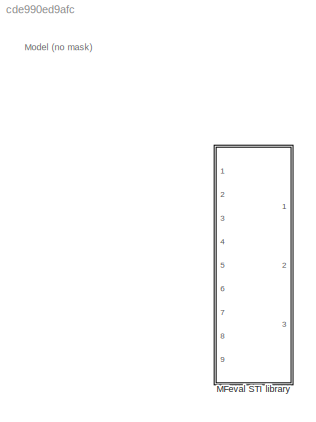
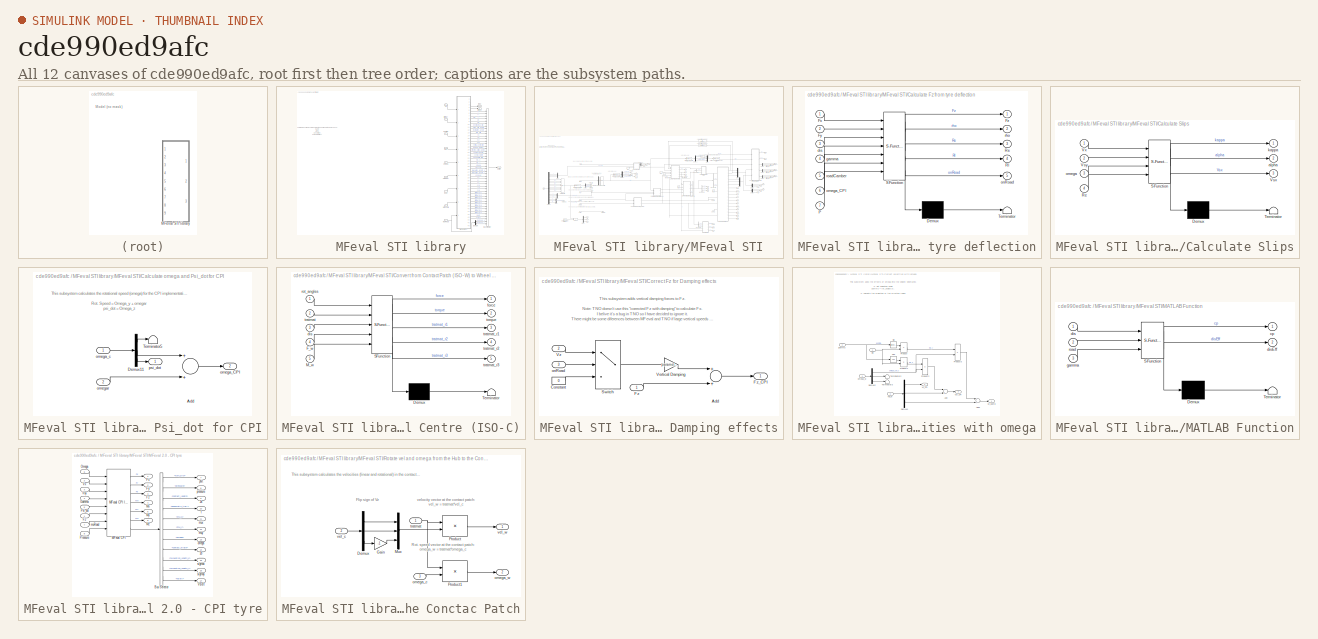
[diagram: thumbnail index - all 12 canvases of the model, root first then tree order]
MODEL slx_cde990ed9afc
KIND library
CONFIG AbsTol = auto
CONFIG EnableMultiTasking = off
CONFIG FixedStep = auto
CONFIG MaxStep = auto
CONFIG MinStep = auto
CONFIG RelTol = 1e-3
CONFIG SampleTimeConstraint = Unconstrained
CONFIG Solver = ode45
CONFIG SolverName = ode45
CONFIG StartTime = 0.0
CONFIG StopTime = 10.0
BLOCK [SubSystem] MFeval STI library
  Ports = [9, 3]
  RequestExecContextInheritance = off
  Variant = off
BLOCK [BusCreator] MFeval STI library/Bus Creator
  DisplayOption = bar
  InheritFromInputs = on
  Inputs = 46
  Ports = [46, 1]
BLOCK [Demux] MFeval STI library/Demux
  DisplayOption = bar
  Outputs = 2
  Ports = [1, 2]
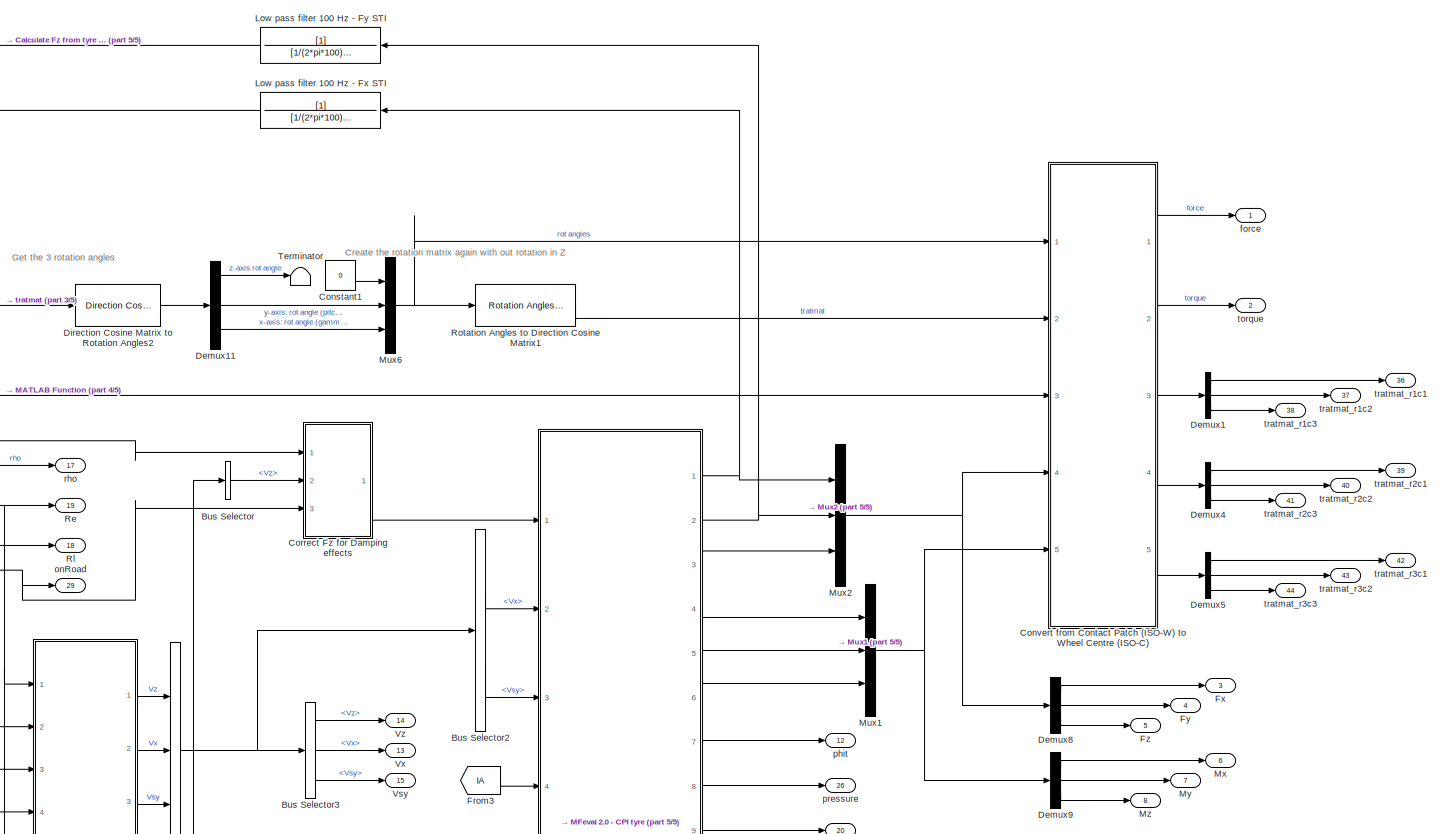
[diagram: MFeval STI library/MFeval STI - part 1/5, top right region]
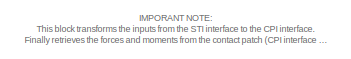
[diagram: MFeval STI library/MFeval STI - part 2/5, top left region]
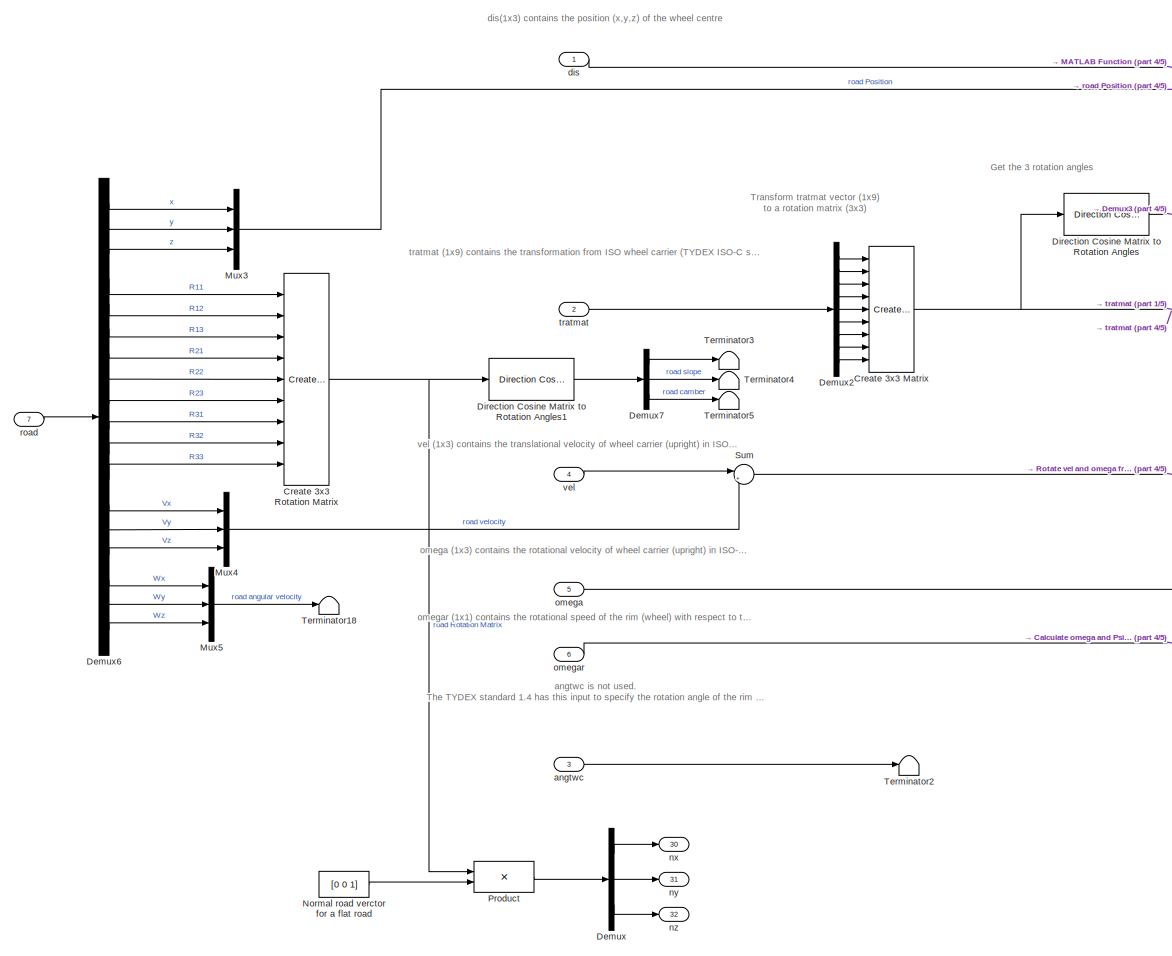
[diagram: MFeval STI library/MFeval STI - part 3/5, middle left region]
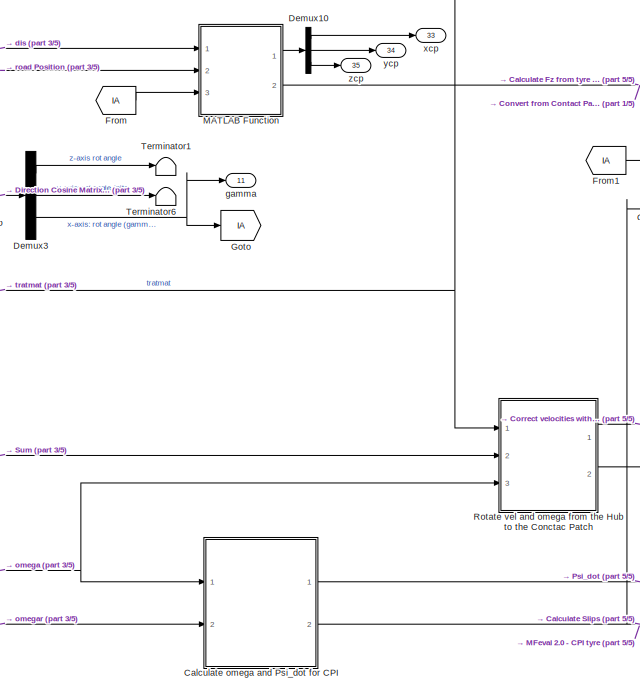
[diagram: MFeval STI library/MFeval STI - part 4/5, central region]
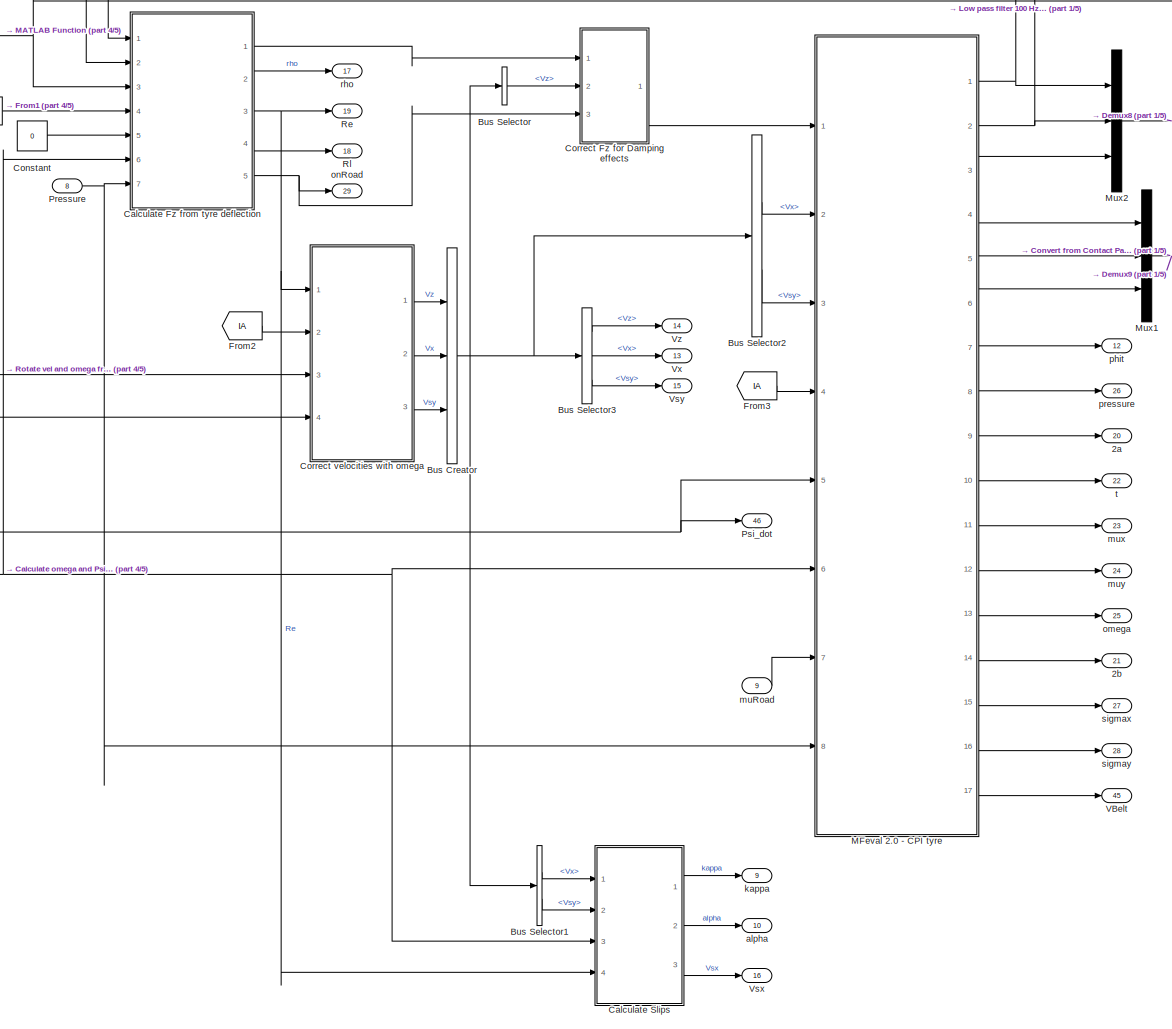
[diagram: MFeval STI library/MFeval STI - part 5/5, middle right region]
BLOCK [SubSystem] MFeval STI library/MFeval STI
  Ports = [9, 46]
  RequestExecContextInheritance = off
  Variant = off
BLOCK [Outport] MFeval STI library/MFeval STI/2a
  IconDisplay = Port number
  Port = 20
BLOCK [Outport] MFeval STI library/MFeval STI/2b
  IconDisplay = Port number
  Port = 21
BLOCK [BusCreator] MFeval STI library/MFeval STI/Bus Creator
  DisplayOption = bar
  InheritFromInputs = on
  Inputs = 3
  Ports = [3, 1]
BLOCK [BusSelector] MFeval STI library/MFeval STI/Bus Selector
  OutputAsBus = off
  OutputSignals = Vz
  Ports = [1, 1]
BLOCK [BusSelector] MFeval STI library/MFeval STI/Bus Selector1
  OutputAsBus = off
  OutputSignals = Vx,Vsy
  Ports = [1, 2]
BLOCK [BusSelector] MFeval STI library/MFeval STI/Bus Selector2
  OutputAsBus = off
  OutputSignals = Vx,Vsy
  Ports = [1, 2]
BLOCK [BusSelector] MFeval STI library/MFeval STI/Bus Selector3
  OutputAsBus = off
  OutputSignals = Vz,Vx,Vsy
  Ports = [1, 3]
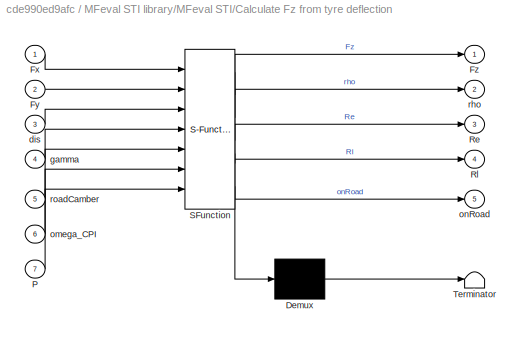
BLOCK [SubSystem] MFeval STI library/MFeval STI/Calculate Fz from tyre deflection
  ErrorFcn = Stateflow.Translate.translate
  PermitHierarchicalResolution = ExplicitOnly
  Ports = [7, 5]
  RequestExecContextInheritance = off
  SFBlockType = MATLAB Function
  TreatAsAtomicUnit = on
  Variant = off
BLOCK [Demux] MFeval STI library/MFeval STI/Calculate Fz from tyre deflection/ Demux 
  Outputs = 1
  Ports = [1, 1]
BLOCK [S-Function] MFeval STI library/MFeval STI/Calculate Fz from tyre deflection/ SFunction 
  EnableBusSupport = off
  FunctionName = sf_sfun
  Parameters = parameterStruct,userDynamics
  PortCounts = [7 6]
  Ports = [7, 6]
  SFcnIsStateOwnerBlock = off
  SFunctionDeploymentMode = off
  Tag = Stateflow S-Function mfeval_STI_LIB 16
BLOCK [Terminator] MFeval STI library/MFeval STI/Calculate Fz from tyre deflection/ Terminator 
BLOCK [Inport] MFeval STI library/MFeval STI/Calculate Fz from tyre deflection/Fx
  IconDisplay = Port number
BLOCK [Inport] MFeval STI library/MFeval STI/Calculate Fz from tyre deflection/Fy
  IconDisplay = Port number
  Port = 2
BLOCK [Outport] MFeval STI library/MFeval STI/Calculate Fz from tyre deflection/Fz
  IconDisplay = Port number
BLOCK [Inport] MFeval STI library/MFeval STI/Calculate Fz from tyre deflection/P
  IconDisplay = Port number
  Port = 7
BLOCK [Outport] MFeval STI library/MFeval STI/Calculate Fz from tyre deflection/Re
  IconDisplay = Port number
  Port = 3
BLOCK [Outport] MFeval STI library/MFeval STI/Calculate Fz from tyre deflection/Rl
  IconDisplay = Port number
  Port = 4
BLOCK [Inport] MFeval STI library/MFeval STI/Calculate Fz from tyre deflection/dis
  IconDisplay = Port number
  Port = 3
BLOCK [Inport] MFeval STI library/MFeval STI/Calculate Fz from tyre deflection/gamma
  IconDisplay = Port number
  Port = 4
BLOCK [Inport] MFeval STI library/MFeval STI/Calculate Fz from tyre deflection/omega_CPI
  IconDisplay = Port number
  Port = 6
BLOCK [Outport] MFeval STI library/MFeval STI/Calculate Fz from tyre deflection/onRoad
  IconDisplay = Port number
  Port = 5
BLOCK [Outport] MFeval STI library/MFeval STI/Calculate Fz from tyre deflection/rho
  IconDisplay = Port number
  Port = 2
BLOCK [Inport] MFeval STI library/MFeval STI/Calculate Fz from tyre deflection/roadCamber
  IconDisplay = Port number
  Port = 5
BLOCK [SubSystem] MFeval STI library/MFeval STI/Calculate Slips
  ErrorFcn = Stateflow.Translate.translate
  PermitHierarchicalResolution = ExplicitOnly
  Ports = [4, 3]
  RequestExecContextInheritance = off
  SFBlockType = MATLAB Function
  TreatAsAtomicUnit = on
  Variant = off
BLOCK [Demux] MFeval STI library/MFeval STI/Calculate Slips/ Demux 
  Outputs = 1
  Ports = [1, 1]
BLOCK [S-Function] MFeval STI library/MFeval STI/Calculate Slips/ SFunction 
  EnableBusSupport = off
  FunctionName = sf_sfun
  Parameters = parameterStruct
  PortCounts = [4 4]
  Ports = [4, 4]
  SFcnIsStateOwnerBlock = off
  SFunctionDeploymentMode = off
  Tag = Stateflow S-Function mfeval_STI_LIB 3
BLOCK [Terminator] MFeval STI library/MFeval STI/Calculate Slips/ Terminator 
BLOCK [Inport] MFeval STI library/MFeval STI/Calculate Slips/Re
  IconDisplay = Port number
  Port = 4
BLOCK [Outport] MFeval STI library/MFeval STI/Calculate Slips/Vsx
  IconDisplay = Port number
  Port = 3
BLOCK [Inport] MFeval STI library/MFeval STI/Calculate Slips/Vsy
  IconDisplay = Port number
  Port = 2
BLOCK [Inport] MFeval STI library/MFeval STI/Calculate Slips/Vx
  IconDisplay = Port number
BLOCK [Outport] MFeval STI library/MFeval STI/Calculate Slips/alpha
  IconDisplay = Port number
  Port = 2
BLOCK [Outport] MFeval STI library/MFeval STI/Calculate Slips/kappa
  IconDisplay = Port number
BLOCK [Inport] MFeval STI library/MFeval STI/Calculate Slips/omega
  IconDisplay = Port number
  Port = 3
BLOCK [SubSystem] MFeval STI library/MFeval STI/Calculate omega and Psi_dot for CPI
  Ports = [2, 2]
  RequestExecContextInheritance = off
  Variant = off
BLOCK [Sum] MFeval STI library/MFeval STI/Calculate omega and Psi_dot for CPI/Add
  InputSameDT = off
  OutDataTypeStr = Inherit: Inherit via internal rule
  Ports = [2, 1]
  SaturateOnIntegerOverflow = off
BLOCK [Demux] MFeval STI library/MFeval STI/Calculate omega and Psi_dot for CPI/Demux11
  Outputs = 3
  Ports = [1, 3]
BLOCK [Terminator] MFeval STI library/MFeval STI/Calculate omega and Psi_dot for CPI/Terminator5
BLOCK [Outport] MFeval STI library/MFeval STI/Calculate omega and Psi_dot for CPI/omega_CPI
  IconDisplay = Port number
  Port = 2
BLOCK [Inport] MFeval STI library/MFeval STI/Calculate omega and Psi_dot for CPI/omega_c
  IconDisplay = Port number
BLOCK [Inport] MFeval STI library/MFeval STI/Calculate omega and Psi_dot for CPI/omegar
  IconDisplay = Port number
  Port = 2
BLOCK [Outport] MFeval STI library/MFeval STI/Calculate omega and Psi_dot for CPI/psi_dot
  IconDisplay = Port number
BLOCK [Constant] MFeval STI library/MFeval STI/Constant
  Value = 0
BLOCK [Constant] MFeval STI library/MFeval STI/Constant1
  Value = 0
BLOCK [SubSystem] MFeval STI library/MFeval STI/Convert from Contact Patch (ISO-W) to Wheel Centre (ISO-C)
  ErrorFcn = Stateflow.Translate.translate
  PermitHierarchicalResolution = ExplicitOnly
  Ports = [5, 5]
  RequestExecContextInheritance = off
  SFBlockType = MATLAB Function
  TreatAsAtomicUnit = on
  Variant = off
BLOCK [Demux] MFeval STI library/MFeval STI/Convert from Contact Patch (ISO-W) to Wheel Centre (ISO-C)/ Demux 
  Outputs = 1
  Ports = [1, 1]
BLOCK [S-Function] MFeval STI library/MFeval STI/Convert from Contact Patch (ISO-W) to Wheel Centre (ISO-C)/ SFunction 
  EnableBusSupport = off
  FunctionName = sf_sfun
  PortCounts = [5 6]
  Ports = [5, 6]
  SFcnIsStateOwnerBlock = off
  SFunctionDeploymentMode = off
  Tag = Stateflow S-Function mfeval_STI_LIB 17
BLOCK [Terminator] MFeval STI library/MFeval STI/Convert from Contact Patch (ISO-W) to Wheel Centre (ISO-C)/ Terminator 
BLOCK [Inport] MFeval STI library/MFeval STI/Convert from Contact Patch (ISO-W) to Wheel Centre (ISO-C)/F_w
  IconDisplay = Port number
  Port = 4
BLOCK [Inport] MFeval STI library/MFeval STI/Convert from Contact Patch (ISO-W) to Wheel Centre (ISO-C)/M_w
  IconDisplay = Port number
  Port = 5
BLOCK [Inport] MFeval STI library/MFeval STI/Convert from Contact Patch (ISO-W) to Wheel Centre (ISO-C)/dis
  IconDisplay = Port number
  Port = 3
BLOCK [Outport] MFeval STI library/MFeval STI/Convert from Contact Patch (ISO-W) to Wheel Centre (ISO-C)/force
  IconDisplay = Port number
BLOCK [Inport] MFeval STI library/MFeval STI/Convert from Contact Patch (ISO-W) to Wheel Centre (ISO-C)/rot_angles
  IconDisplay = Port number
BLOCK [Outport] MFeval STI library/MFeval STI/Convert from Contact Patch (ISO-W) to Wheel Centre (ISO-C)/torque
  IconDisplay = Port number
  Port = 2
BLOCK [Inport] MFeval STI library/MFeval STI/Convert from Contact Patch (ISO-W) to Wheel Centre (ISO-C)/tratmat
  IconDisplay = Port number
  Port = 2
BLOCK [Outport] MFeval STI library/MFeval STI/Convert from Contact Patch (ISO-W) to Wheel Centre (ISO-C)/tratmat_r1
  IconDisplay = Port number
  Port = 3
BLOCK [Outport] MFeval STI library/MFeval STI/Convert from Contact Patch (ISO-W) to Wheel Centre (ISO-C)/tratmat_r2
  IconDisplay = Port number
  Port = 4
BLOCK [Outport] MFeval STI library/MFeval STI/Convert from Contact Patch (ISO-W) to Wheel Centre (ISO-C)/tratmat_r3
  IconDisplay = Port number
  Port = 5
BLOCK [SubSystem] MFeval STI library/MFeval STI/Correct Fz for Damping effects
  Ports = [3, 1]
  RequestExecContextInheritance = off
  Variant = off
BLOCK [Sum] MFeval STI library/MFeval STI/Correct Fz for Damping effects/Add
  InputSameDT = off
  OutDataTypeStr = Inherit: Inherit via internal rule
  Ports = [2, 1]
  SaturateOnIntegerOverflow = off
BLOCK [Constant] MFeval STI library/MFeval STI/Correct Fz for Damping effects/Constant
  Value = 0
BLOCK [Inport] MFeval STI library/MFeval STI/Correct Fz for Damping effects/Fz
  IconDisplay = Port number
BLOCK [Outport] MFeval STI library/MFeval STI/Correct Fz for Damping effects/Fz_CPI
  IconDisplay = Port number
BLOCK [Switch] MFeval STI library/MFeval STI/Correct Fz for Damping effects/Switch
  Criteria = u2 > Threshold
  InputSameDT = off
  SaturateOnIntegerOverflow = off
BLOCK [Gain] MFeval STI library/MFeval STI/Correct Fz for Damping effects/Vertical Damping
  Gain = parameterStruct.VERTICAL_DAMPING
  OutDataTypeStr = Inherit: Inherit via internal rule
  ParamDataTypeStr = Inherit: Inherit via internal rule
  SaturateOnIntegerOverflow = off
BLOCK [Inport] MFeval STI library/MFeval STI/Correct Fz for Damping effects/Vz
  IconDisplay = Port number
  Port = 2
BLOCK [Inport] MFeval STI library/MFeval STI/Correct Fz for Damping effects/onRoad
  IconDisplay = Port number
  Port = 3
BLOCK [SubSystem] MFeval STI library/MFeval STI/Correct velocities with omega
  Ports = [4, 3]
  RequestExecContextInheritance = off
  Variant = off
BLOCK [Sum] MFeval STI library/MFeval STI/Correct velocities with omega/Add
  InputSameDT = off
  OutDataTypeStr = Inherit: Inherit via internal rule
  Ports = [2, 1]
  SaturateOnIntegerOverflow = off
BLOCK [Sum] MFeval STI library/MFeval STI/Correct velocities with omega/Add1
  InputSameDT = off
  OutDataTypeStr = Inherit: Inherit via internal rule
  Ports = [2, 1]
  SaturateOnIntegerOverflow = off
BLOCK [Trigonometry] MFeval STI library/MFeval STI/Correct velocities with omega/Cos
  Operator = cos
  Ports = [1, 1]
BLOCK [Demux] MFeval STI library/MFeval STI/Correct velocities with omega/Demux1
  Outputs = 3
  Ports = [1, 3]
BLOCK [Demux] MFeval STI library/MFeval STI/Correct velocities with omega/Demux2
  Outputs = 3
  Ports = [1, 3]
BLOCK [Product] MFeval STI library/MFeval STI/Correct velocities with omega/Product
  InputSameDT = off
  OutDataTypeStr = Inherit: Inherit via internal rule
  Ports = [2, 1]
  RndMeth = Floor
  SaturateOnIntegerOverflow = off
BLOCK [Product] MFeval STI library/MFeval STI/Correct velocities with omega/Product1
  InputSameDT = off
  OutDataTypeStr = Inherit: Inherit via internal rule
  Ports = [2, 1]
  RndMeth = Floor
  SaturateOnIntegerOverflow = off
BLOCK [Product] MFeval STI library/MFeval STI/Correct velocities with omega/Product2
  InputSameDT = off
  OutDataTypeStr = Inherit: Inherit via internal rule
  Ports = [2, 1]
  RndMeth = Floor
  SaturateOnIntegerOverflow = off
BLOCK [Product] MFeval STI library/MFeval STI/Correct velocities with omega/Product3
  InputSameDT = off
  OutDataTypeStr = Inherit: Inherit via internal rule
  Ports = [2, 1]
  RndMeth = Floor
  SaturateOnIntegerOverflow = off
BLOCK [Inport] MFeval STI library/MFeval STI/Correct velocities with omega/Re
  IconDisplay = Port number
BLOCK [Trigonometry] MFeval STI library/MFeval STI/Correct velocities with omega/Sin
  Ports = [1, 1]
BLOCK [Terminator] MFeval STI library/MFeval STI/Correct velocities with omega/Terminator2
BLOCK [Terminator] MFeval STI library/MFeval STI/Correct velocities with omega/Terminator3
BLOCK [Outport] MFeval STI library/MFeval STI/Correct velocities with omega/Vsy_CPI
  IconDisplay = Port number
  Port = 3
BLOCK [Outport] MFeval STI library/MFeval STI/Correct velocities with omega/Vx_CPI
  IconDisplay = Port number
  Port = 2
BLOCK [Outport] MFeval STI library/MFeval STI/Correct velocities with omega/Vz_damp
  IconDisplay = Port number
BLOCK [Inport] MFeval STI library/MFeval STI/Correct velocities with omega/gamma
  IconDisplay = Port number
  Port = 2
BLOCK [Inport] MFeval STI library/MFeval STI/Correct velocities with omega/omega_w
  IconDisplay = Port number
  Port = 4
BLOCK [Inport] MFeval STI library/MFeval STI/Correct velocities with omega/vel_w
  IconDisplay = Port number
  Port = 3
BLOCK [Reference] MFeval STI library/MFeval STI/Create 3x3 Matrix  REF=sharedutil/Create 3x3 Matrix
  Ports = [9, 1]
  SourceBlock = sharedutil/Create 3x3 Matrix
  SourceProductBaseCode = AE
  SourceProductName = Aerospace Blockset
  SourceType = Create 3x3 Matrix
BLOCK [Reference] MFeval STI library/MFeval STI/Create 3x3 Rotation Matrix  REF=sharedutil/Create 3x3 Matrix
  Ports = [9, 1]
  SourceBlock = sharedutil/Create 3x3 Matrix
  SourceProductBaseCode = AE
  SourceProductName = Aerospace Blockset
  SourceType = Create 3x3 Matrix
BLOCK [Demux] MFeval STI library/MFeval STI/Demux
  Outputs = 3
  Ports = [1, 3]
BLOCK [Demux] MFeval STI library/MFeval STI/Demux1
  Outputs = 3
  Ports = [1, 3]
BLOCK [Demux] MFeval STI library/MFeval STI/Demux10
  Outputs = 3
  Ports = [1, 3]
BLOCK [Demux] MFeval STI library/MFeval STI/Demux11
  DisplayOption = bar
  Outputs = 3
  Ports = [1, 3]
BLOCK [Demux] MFeval STI library/MFeval STI/Demux2
  DisplayOption = bar
  Outputs = 9
  Ports = [1, 9]
BLOCK [Demux] MFeval STI library/MFeval STI/Demux3
  DisplayOption = bar
  Outputs = 3
  Ports = [1, 3]
BLOCK [Demux] MFeval STI library/MFeval STI/Demux4
  Outputs = 3
  Ports = [1, 3]
BLOCK [Demux] MFeval STI library/MFeval STI/Demux5
  Outputs = 3
  Ports = [1, 3]
BLOCK [Demux] MFeval STI library/MFeval STI/Demux6
  DisplayOption = bar
  Outputs = 18
  Ports = [1, 18]
BLOCK [Demux] MFeval STI library/MFeval STI/Demux7
  DisplayOption = bar
  Outputs = 3
  Ports = [1, 3]
BLOCK [Demux] MFeval STI library/MFeval STI/Demux8
  Outputs = 3
  Ports = [1, 3]
BLOCK [Demux] MFeval STI library/MFeval STI/Demux9
  Outputs = 3
  Ports = [1, 3]
BLOCK [Reference] MFeval STI library/MFeval STI/Direction Cosine Matrix to Rotation Angles  REF=sharedtransform/Direction Cosine Matrix
to Rotation Angles
  AttributesFormatString = Rotation Order: %<rotationOrder>
  Ports = [1, 1]
  SourceBlock = sharedtransform/Direction Cosine Matrix\nto Rotation Angles
  SourceProductBaseCode = AE
  SourceProductName = Aerospace Blockset
  SourceType = DCM2Ang
BLOCK [Reference] MFeval STI library/MFeval STI/Direction Cosine Matrix to Rotation Angles1  REF=sharedtransform/Direction Cosine Matrix
to Rotation Angles
  AttributesFormatString = Rotation Order: %<rotationOrder>
  Ports = [1, 1]
  SourceBlock = sharedtransform/Direction Cosine Matrix\nto Rotation Angles
  SourceProductBaseCode = AE
  SourceProductName = Aerospace Blockset
  SourceType = DCM2Ang
BLOCK [Reference] MFeval STI library/MFeval STI/Direction Cosine Matrix to Rotation Angles2  REF=sharedtransform/Direction Cosine Matrix
to Rotation Angles
  AttributesFormatString = Rotation Order: %<rotationOrder>
  Ports = [1, 1]
  SourceBlock = sharedtransform/Direction Cosine Matrix\nto Rotation Angles
  SourceProductBaseCode = AE
  SourceProductName = Aerospace Blockset
  SourceType = DCM2Ang
BLOCK [From] MFeval STI library/MFeval STI/From
  GotoTag = IA
BLOCK [From] MFeval STI library/MFeval STI/From1
  GotoTag = IA
BLOCK [From] MFeval STI library/MFeval STI/From2
  GotoTag = IA
BLOCK [From] MFeval STI library/MFeval STI/From3
  GotoTag = IA
BLOCK [Outport] MFeval STI library/MFeval STI/Fx
  IconDisplay = Port number
  Port = 3
BLOCK [Outport] MFeval STI library/MFeval STI/Fy
  IconDisplay = Port number
  Port = 4
BLOCK [Outport] MFeval STI library/MFeval STI/Fz
  IconDisplay = Port number
  Port = 5
BLOCK [Goto] MFeval STI library/MFeval STI/Goto
  GotoTag = IA
BLOCK [TransferFcn] MFeval STI library/MFeval STI/Low pass filter  100 Hz - Fx STI
  Denominator = [1/(2*pi*100) 1]
BLOCK [TransferFcn] MFeval STI library/MFeval STI/Low pass filter  100 Hz - Fy STI
  Denominator = [1/(2*pi*100) 1]
BLOCK [SubSystem] MFeval STI library/MFeval STI/MATLAB Function
  ErrorFcn = Stateflow.Translate.translate
  PermitHierarchicalResolution = ExplicitOnly
  Ports = [3, 2]
  RequestExecContextInheritance = off
  SFBlockType = MATLAB Function
  TreatAsAtomicUnit = on
  Variant = off
BLOCK [Demux] MFeval STI library/MFeval STI/MATLAB Function/ Demux 
  Outputs = 1
  Ports = [1, 1]
BLOCK [S-Function] MFeval STI library/MFeval STI/MATLAB Function/ SFunction 
  EnableBusSupport = off
  FunctionName = sf_sfun
  PortCounts = [3 3]
  Ports = [3, 3]
  SFcnIsStateOwnerBlock = off
  SFunctionDeploymentMode = off
  Tag = Stateflow S-Function mfeval_STI_LIB 2
BLOCK [Terminator] MFeval STI library/MFeval STI/MATLAB Function/ Terminator 
BLOCK [Outport] MFeval STI library/MFeval STI/MATLAB Function/cp
  IconDisplay = Port number
BLOCK [Inport] MFeval STI library/MFeval STI/MATLAB Function/dis
  IconDisplay = Port number
BLOCK [Outport] MFeval STI library/MFeval STI/MATLAB Function/disEff
  IconDisplay = Port number
  Port = 2
BLOCK [Inport] MFeval STI library/MFeval STI/MATLAB Function/gamma
  IconDisplay = Port number
  Port = 3
BLOCK [Inport] MFeval STI library/MFeval STI/MATLAB Function/road
  IconDisplay = Port number
  Port = 2
BLOCK [SubSystem] MFeval STI library/MFeval STI/MFeval 2.0 - CPI tyre
  Ports = [8, 17]
  RequestExecContextInheritance = off
  Variant = off
BLOCK [Outport] MFeval STI library/MFeval STI/MFeval 2.0 - CPI tyre/2a
  IconDisplay = Port number
  Port = 9
BLOCK [Outport] MFeval STI library/MFeval STI/MFeval 2.0 - CPI tyre/2b
  IconDisplay = Port number
  Port = 14
BLOCK [BusSelector] MFeval STI library/MFeval STI/MFeval 2.0 - CPI tyre/Bus Selector
  OutputAsBus = off
  OutputSignals = turn_slip,pressure,contact_length,pneumatic_trail,mu_x,mu_y,omega,contact_width,relaxation_length_x,relaxation_length_y,vBelt
  Ports = [1, 11]
BLOCK [Outport] MFeval STI library/MFeval STI/MFeval 2.0 - CPI tyre/Fx
  IconDisplay = Port number
BLOCK [Outport] MFeval STI library/MFeval STI/MFeval 2.0 - CPI tyre/Fy
  IconDisplay = Port number
  Port = 2
BLOCK [Inport] MFeval STI library/MFeval STI/MFeval 2.0 - CPI tyre/Fz
  IconDisplay = Port number
BLOCK [Outport] MFeval STI library/MFeval STI/MFeval 2.0 - CPI tyre/Fz 
  IconDisplay = Port number
  Port = 3
BLOCK [Inport] MFeval STI library/MFeval STI/MFeval 2.0 - CPI tyre/Gamma
  IconDisplay = Port number
  Port = 4
BLOCK [Reference] MFeval STI library/MFeval STI/MFeval 2.0 - CPI tyre/MFeval CPI  REF=mfeval_CPI_LIB/MFeval CPI library
  Ports = [8, 7]
  SourceBlock = mfeval_CPI_LIB/MFeval CPI library
  SourceType = SubSystem
BLOCK [Outport] MFeval STI library/MFeval STI/MFeval 2.0 - CPI tyre/Mx
  IconDisplay = Port number
  Port = 4
BLOCK [Outport] MFeval STI library/MFeval STI/MFeval 2.0 - CPI tyre/My
  IconDisplay = Port number
  Port = 5
BLOCK [Outport] MFeval STI library/MFeval STI/MFeval 2.0 - CPI tyre/Mz
  IconDisplay = Port number
  Port = 6
BLOCK [Inport] MFeval STI library/MFeval STI/MFeval 2.0 - CPI tyre/Omega
  IconDisplay = Port number
  Port = 6
BLOCK [Inport] MFeval STI library/MFeval STI/MFeval 2.0 - CPI tyre/Pressure
  IconDisplay = Port number
  Port = 8
BLOCK [Inport] MFeval STI library/MFeval STI/MFeval 2.0 - CPI tyre/Psi_dot
  IconDisplay = Port number
  Port = 5
BLOCK [Outport] MFeval STI library/MFeval STI/MFeval 2.0 - CPI tyre/VBelt
  IconDisplay = Port number
  Port = 17
BLOCK [Inport] MFeval STI library/MFeval STI/MFeval 2.0 - CPI tyre/Vsy
  IconDisplay = Port number
  Port = 3
BLOCK [Inport] MFeval STI library/MFeval STI/MFeval 2.0 - CPI tyre/Vx
  IconDisplay = Port number
  Port = 2
BLOCK [Inport] MFeval STI library/MFeval STI/MFeval 2.0 - CPI tyre/muRoad
  IconDisplay = Port number
  Port = 7
BLOCK [Outport] MFeval STI library/MFeval STI/MFeval 2.0 - CPI tyre/mux
  IconDisplay = Port number
  Port = 11
BLOCK [Outport] MFeval STI library/MFeval STI/MFeval 2.0 - CPI tyre/muy
  IconDisplay = Port number
  Port = 12
BLOCK [Outport] MFeval STI library/MFeval STI/MFeval 2.0 - CPI tyre/omega
  IconDisplay = Port number
  Port = 13
BLOCK [Outport] MFeval STI library/MFeval STI/MFeval 2.0 - CPI tyre/phit
  IconDisplay = Port number
  Port = 7
BLOCK [Outport] MFeval STI library/MFeval STI/MFeval 2.0 - CPI tyre/pressure
  IconDisplay = Port number
  Port = 8
BLOCK [Outport] MFeval STI library/MFeval STI/MFeval 2.0 - CPI tyre/sigmax
  IconDisplay = Port number
  Port = 15
BLOCK [Outport] MFeval STI library/MFeval STI/MFeval 2.0 - CPI tyre/sigmay
  IconDisplay = Port number
  Port = 16
BLOCK [Outport] MFeval STI library/MFeval STI/MFeval 2.0 - CPI tyre/t
  IconDisplay = Port number
  Port = 10
BLOCK [Mux] MFeval STI library/MFeval STI/Mux1
  DisplayOption = bar
  Inputs = 3
  Ports = [3, 1]
BLOCK [Mux] MFeval STI library/MFeval STI/Mux2
  DisplayOption = bar
  Inputs = 3
  Ports = [3, 1]
BLOCK [Mux] MFeval STI library/MFeval STI/Mux3
  DisplayOption = bar
  Inputs = 3
  Ports = [3, 1]
BLOCK [Mux] MFeval STI library/MFeval STI/Mux4
  DisplayOption = bar
  Inputs = 3
  Ports = [3, 1]
BLOCK [Mux] MFeval STI library/MFeval STI/Mux5
  DisplayOption = bar
  Inputs = 3
  Ports = [3, 1]
BLOCK [Mux] MFeval STI library/MFeval STI/Mux6
  DisplayOption = bar
  Inputs = 3
  Ports = [3, 1]
BLOCK [Outport] MFeval STI library/MFeval STI/Mx
  IconDisplay = Port number
  Port = 6
BLOCK [Outport] MFeval STI library/MFeval STI/My
  IconDisplay = Port number
  Port = 7
BLOCK [Outport] MFeval STI library/MFeval STI/Mz
  IconDisplay = Port number
  Port = 8
BLOCK [Constant] MFeval STI library/MFeval STI/Normal road verctor for a flat road
  Value = [0 0 1]
BLOCK [Inport] MFeval STI library/MFeval STI/Pressure
  IconDisplay = Port number
  Port = 8
BLOCK [Product] MFeval STI library/MFeval STI/Product
  InputSameDT = off
  Multiplication = Matrix(*)
  OutDataTypeStr = Inherit: Inherit via internal rule
  Ports = [2, 1]
  RndMeth = Floor
  SaturateOnIntegerOverflow = off
BLOCK [Outport] MFeval STI library/MFeval STI/Psi_dot
  IconDisplay = Port number
  Port = 46
BLOCK [Outport] MFeval STI library/MFeval STI/Re
  IconDisplay = Port number
  Port = 19
BLOCK [Outport] MFeval STI library/MFeval STI/Rl
  IconDisplay = Port number
  Port = 18
BLOCK [SubSystem] MFeval STI library/MFeval STI/Rotate vel and omega from the Hub to the Conctac Patch
  Ports = [3, 2]
  RequestExecContextInheritance = off
  Variant = off
BLOCK [Demux] MFeval STI library/MFeval STI/Rotate vel and omega from the Hub to the Conctac Patch/Demux
  Outputs = 3
  Ports = [1, 3]
BLOCK [Gain] MFeval STI library/MFeval STI/Rotate vel and omega from the Hub to the Conctac Patch/Gain
  Gain = -1
  OutDataTypeStr = Inherit: Inherit via internal rule
  ParamDataTypeStr = Inherit: Inherit via internal rule
  SaturateOnIntegerOverflow = off
BLOCK [Mux] MFeval STI library/MFeval STI/Rotate vel and omega from the Hub to the Conctac Patch/Mux
  DisplayOption = bar
  Inputs = 3
  Ports = [3, 1]
BLOCK [Product] MFeval STI library/MFeval STI/Rotate vel and omega from the Hub to the Conctac Patch/Product
  InputSameDT = off
  Multiplication = Matrix(*)
  OutDataTypeStr = Inherit: Inherit via internal rule
  Ports = [2, 1]
  RndMeth = Floor
  SaturateOnIntegerOverflow = off
BLOCK [Product] MFeval STI library/MFeval STI/Rotate vel and omega from the Hub to the Conctac Patch/Product1
  InputSameDT = off
  Multiplication = Matrix(*)
  OutDataTypeStr = Inherit: Inherit via internal rule
  Ports = [2, 1]
  RndMeth = Floor
  SaturateOnIntegerOverflow = off
BLOCK [Inport] MFeval STI library/MFeval STI/Rotate vel and omega from the Hub to the Conctac Patch/omega_c
  IconDisplay = Port number
  Port = 3
BLOCK [Outport] MFeval STI library/MFeval STI/Rotate vel and omega from the Hub to the Conctac Patch/omega_w
  IconDisplay = Port number
  Port = 2
BLOCK [Inport] MFeval STI library/MFeval STI/Rotate vel and omega from the Hub to the Conctac Patch/tratmat
  IconDisplay = Port number
BLOCK [Inport] MFeval STI library/MFeval STI/Rotate vel and omega from the Hub to the Conctac Patch/vel_c
  IconDisplay = Port number
  Port = 2
BLOCK [Outport] MFeval STI library/MFeval STI/Rotate vel and omega from the Hub to the Conctac Patch/vel_w
  IconDisplay = Port number
BLOCK [Reference] MFeval STI library/MFeval STI/Rotation Angles to Direction Cosine Matrix1  REF=sharedtransform/Rotation Angles to
Direction Cosine Matrix
  AttributesFormatString = Rotation Order: %<rotationOrder>
  Ports = [1, 1]
  SourceBlock = sharedtransform/Rotation Angles to\nDirection Cosine Matrix
  SourceProductBaseCode = AE
  SourceProductName = Aerospace Blockset
  SourceType = Ang2DCM
BLOCK [Sum] MFeval STI library/MFeval STI/Sum
  IconShape = round
  InputSameDT = off
  Inputs = |+-
  OutDataTypeStr = Inherit: Inherit via internal rule
  Ports = [2, 1]
  SaturateOnIntegerOverflow = off
BLOCK [Terminator] MFeval STI library/MFeval STI/Terminator
BLOCK [Terminator] MFeval STI library/MFeval STI/Terminator1
BLOCK [Terminator] MFeval STI library/MFeval STI/Terminator18
BLOCK [Terminator] MFeval STI library/MFeval STI/Terminator2
BLOCK [Terminator] MFeval STI library/MFeval STI/Terminator3
BLOCK [Terminator] MFeval STI library/MFeval STI/Terminator4
BLOCK [Terminator] MFeval STI library/MFeval STI/Terminator5
BLOCK [Terminator] MFeval STI library/MFeval STI/Terminator6
BLOCK [Outport] MFeval STI library/MFeval STI/VBelt
  IconDisplay = Port number
  Port = 45
BLOCK [Outport] MFeval STI library/MFeval STI/Vsx
  IconDisplay = Port number
  Port = 16
BLOCK [Outport] MFeval STI library/MFeval STI/Vsy
  IconDisplay = Port number
  Port = 15
BLOCK [Outport] MFeval STI library/MFeval STI/Vx
  IconDisplay = Port number
  Port = 13
BLOCK [Outport] MFeval STI library/MFeval STI/Vz
  IconDisplay = Port number
  Port = 14
BLOCK [Outport] MFeval STI library/MFeval STI/alpha
  IconDisplay = Port number
  Port = 10
BLOCK [Inport] MFeval STI library/MFeval STI/angtwc
  IconDisplay = Port number
  Port = 3
BLOCK [Inport] MFeval STI library/MFeval STI/dis
  IconDisplay = Port number
BLOCK [Outport] MFeval STI library/MFeval STI/force
  IconDisplay = Port number
BLOCK [Outport] MFeval STI library/MFeval STI/gamma
  IconDisplay = Port number
  Port = 11
BLOCK [Outport] MFeval STI library/MFeval STI/kappa
  IconDisplay = Port number
  Port = 9
BLOCK [Inport] MFeval STI library/MFeval STI/muRoad
  IconDisplay = Port number
  Port = 9
BLOCK [Outport] MFeval STI library/MFeval STI/mux
  IconDisplay = Port number
  Port = 23
BLOCK [Outport] MFeval STI library/MFeval STI/muy
  IconDisplay = Port number
  Port = 24
BLOCK [Outport] MFeval STI library/MFeval STI/nx
  IconDisplay = Port number
  Port = 30
BLOCK [Outport] MFeval STI library/MFeval STI/ny
  IconDisplay = Port number
  Port = 31
BLOCK [Outport] MFeval STI library/MFeval STI/nz
  IconDisplay = Port number
  Port = 32
BLOCK [Inport] MFeval STI library/MFeval STI/omega
  IconDisplay = Port number
  Port = 5
BLOCK [Outport] MFeval STI library/MFeval STI/omega 
  IconDisplay = Port number
  Port = 25
BLOCK [Inport] MFeval STI library/MFeval STI/omegar
  IconDisplay = Port number
  Port = 6
BLOCK [Outport] MFeval STI library/MFeval STI/onRoad
  IconDisplay = Port number
  Port = 29
BLOCK [Outport] MFeval STI library/MFeval STI/phit
  IconDisplay = Port number
  Port = 12
BLOCK [Outport] MFeval STI library/MFeval STI/pressure
  IconDisplay = Port number
  Port = 26
BLOCK [Outport] MFeval STI library/MFeval STI/rho
  IconDisplay = Port number
  Port = 17
BLOCK [Inport] MFeval STI library/MFeval STI/road
  IconDisplay = Port number
  Port = 7
BLOCK [Outport] MFeval STI library/MFeval STI/sigmax
  IconDisplay = Port number
  Port = 27
BLOCK [Outport] MFeval STI library/MFeval STI/sigmay
  IconDisplay = Port number
  Port = 28
BLOCK [Outport] MFeval STI library/MFeval STI/t
  IconDisplay = Port number
  Port = 22
BLOCK [Outport] MFeval STI library/MFeval STI/torque
  IconDisplay = Port number
  Port = 2
BLOCK [Inport] MFeval STI library/MFeval STI/tratmat
  IconDisplay = Port number
  Port = 2
BLOCK [Outport] MFeval STI library/MFeval STI/tratmat_r1c1
  IconDisplay = Port number
  Port = 36
BLOCK [Outport] MFeval STI library/MFeval STI/tratmat_r1c2
  IconDisplay = Port number
  Port = 37
BLOCK [Outport] MFeval STI library/MFeval STI/tratmat_r1c3
  IconDisplay = Port number
  Port = 38
BLOCK [Outport] MFeval STI library/MFeval STI/tratmat_r2c1
  IconDisplay = Port number
  Port = 39
BLOCK [Outport] MFeval STI library/MFeval STI/tratmat_r2c2
  IconDisplay = Port number
  Port = 40
BLOCK [Outport] MFeval STI library/MFeval STI/tratmat_r2c3
  IconDisplay = Port number
  Port = 41
BLOCK [Outport] MFeval STI library/MFeval STI/tratmat_r3c1
  IconDisplay = Port number
  Port = 42
BLOCK [Outport] MFeval STI library/MFeval STI/tratmat_r3c2
  IconDisplay = Port number
  Port = 43
BLOCK [Outport] MFeval STI library/MFeval STI/tratmat_r3c3
  IconDisplay = Port number
  Port = 44
BLOCK [Inport] MFeval STI library/MFeval STI/vel
  IconDisplay = Port number
  Port = 4
BLOCK [Outport] MFeval STI library/MFeval STI/xcp
  IconDisplay = Port number
  Port = 33
BLOCK [Outport] MFeval STI library/MFeval STI/ycp
  IconDisplay = Port number
  Port = 34
BLOCK [Outport] MFeval STI library/MFeval STI/zcp
  IconDisplay = Port number
  Port = 35
BLOCK [Inport] MFeval STI library/angtwc
  IconDisplay = Port number
  Port = 3
BLOCK [Inport] MFeval STI library/dis
  IconDisplay = Port number
BLOCK [Outport] MFeval STI library/force
  IconDisplay = Port number
BLOCK [Inport] MFeval STI library/muRoad
  IconDisplay = Port number
  Port = 8
BLOCK [Inport] MFeval STI library/omega
  IconDisplay = Port number
  Port = 5
BLOCK [Inport] MFeval STI library/omegar
  IconDisplay = Port number
  Port = 6
BLOCK [Inport] MFeval STI library/pressure
  IconDisplay = Port number
  Port = 9
BLOCK [Inport] MFeval STI library/road
  IconDisplay = Port number
  Port = 7
BLOCK [Outport] MFeval STI library/torque
  IconDisplay = Port number
  Port = 2
BLOCK [Inport] MFeval STI library/tratmat
  IconDisplay = Port number
  Port = 2
BLOCK [Outport] MFeval STI library/varinf
  IconDisplay = Port number
  Port = 3
BLOCK [Inport] MFeval STI library/vel
  IconDisplay = Port number
  Port = 4
ANNOTATION (root): Model (no mask)
ANNOTATION MFeval STI library: The following variables are requiered to be defined in the workspace: Name Size Class Description parameterStruct 1x1 struct TIR Structure (numeric only) userDynamics 1x1 double (1 = steady state, 2 = linear trans or 3 = non-linear trans) userUseMode 1x1 double Select between: (1 = combined or 2 = comb+turnslip) flipSide 1x1 double To flip tyre side (0 = No or 1 = Yes)
ANNOTATION MFeval STI library/MFeval STI: Create the rotation matrix again with out rotation in Z
ANNOTATION MFeval STI library/MFeval STI: Transform tratmat vector (1x9) to a rotation matrix (3x3)
ANNOTATION MFeval STI library/MFeval STI: dis (1x3) contains the position (x,y,z) of the wheel centre
ANNOTATION MFeval STI library/MFeval STI: angtwc is not used. The TYDEX standard 1.4 has this input to specify the rotation angle of the rim w.r.t. the wheen carrier (upright) and is supposed to be used as a trigger for non-uniformities of the tyre. But Magic Formula does not have this functionality
ANNOTATION MFeval STI library/MFeval STI: omega (1x3) contains the rotational velocity of wheel carrier (upright) in ISO-C wheel carrier axis system.
ANNOTATION MFeval STI library/MFeval STI: Get the 3 rotation angles
ANNOTATION MFeval STI library/MFeval STI: vel (1x3) contains the translational velocity of wheel carrier (upright) in ISO-C wheel carrier axis system.
ANNOTATION MFeval STI library/MFeval STI: omegar (1x1) contains the rotational speed of the rim (wheel) with respect to the wheel carrier (upright) about the +y axis of the ISO wheel carrier axis system.
ANNOTATION MFeval STI library/MFeval STI: tratmat (1x9) contains the transformation from ISO wheel carrier (TYDEX ISO-C system) axis system to road (earth) axis system.
ANNOTATION MFeval STI library/MFeval STI: IMPORANT NOTE: This block transforms the inputs from the STI interface to the CPI interface. Finally retrieves the forces and moments from the contact patch (CPI interface in ISO-W) and transform them to the upright (ISO-C)
ANNOTATION MFeval STI library/MFeval STI/Calculate omega and Psi_dot for CPI: This subsystem calculates the rotational speed (omega) for the CPI implementation Rot. Speed = Omega_y + omegar psi_dot = Omega_z
ANNOTATION MFeval STI library/MFeval STI/Correct Fz for Damping effects: This subsystem adds vertical damping forces to Fz. Note: TNO doesn't use this "corrected Fz with damping" to calculate Fx. I belive it's a bug in TNO so I have decided to ignore it. There might be some diferences between MFeval and TNO if large vertical speeds are used Fz_CPI = Fz + Vz*C_damping
ANNOTATION MFeval STI library/MFeval STI/Correct velocities with omega: This subsystem adds the effects of omega into the velocity kinematics % Get inclination angle gamma = rot_angles(3); % Calculate the projection of the effective radius Re_y = Re*sin(gamma); Re_z = Re*cos(gamma); % Export the longitudinal velocity for the CPI implementation as it is: Vx_CPI = vel_w(1); % Lateral speed in Point S = Vy + Omega_x * Effective Radius in Z Vsy_CPI = vel_w(2) + omega_w(1)...<+85ch>
ANNOTATION MFeval STI library/MFeval STI/Rotate vel and omega from the Hub to the Conctac Patch: Flip sign of Vz
ANNOTATION MFeval STI library/MFeval STI/Rotate vel and omega from the Hub to the Conctac Patch: Rot. speed vector at the contact patch: omega_w = tratmat*omega_c
ANNOTATION MFeval STI library/MFeval STI/Rotate vel and omega from the Hub to the Conctac Patch: This subsystem calculates the velocities (linear and rotational) in the contact patch
ANNOTATION MFeval STI library/MFeval STI/Rotate vel and omega from the Hub to the Conctac Patch: velocity vector at the contact patch: vel_w = tratmat*vel_c
LINE MFeval STI library/Bus Creator:1 -> MFeval STI library/varinf:1
LINE MFeval STI library/Demux:1 -> MFeval STI library/Bus Creator:45
LINE MFeval STI library/Demux:2 -> MFeval STI library/Bus Creator:46
NET MFeval STI library/MFeval STI/Bus Creator:1 -> MFeval STI library/MFeval STI/Bus Selector1:1, MFeval STI library/MFeval STI/Bus Selector2:1, MFeval STI library/MFeval STI/Bus Selector3:1, MFeval STI library/MFeval STI/Bus Selector:1
LINE MFeval STI library/MFeval STI/Bus Selector1:1 -> MFeval STI library/MFeval STI/Calculate Slips:1
LINE MFeval STI library/MFeval STI/Bus Selector1:2 -> MFeval STI library/MFeval STI/Calculate Slips:2
LINE MFeval STI library/MFeval STI/Bus Selector2:1 -> MFeval STI library/MFeval STI/MFeval 2.0 - CPI tyre:2
LINE MFeval STI library/MFeval STI/Bus Selector2:2 -> MFeval STI library/MFeval STI/MFeval 2.0 - CPI tyre:3
LINE MFeval STI library/MFeval STI/Bus Selector3:1 -> MFeval STI library/MFeval STI/Vz:1
LINE MFeval STI library/MFeval STI/Bus Selector3:2 -> MFeval STI library/MFeval STI/Vx:1
LINE MFeval STI library/MFeval STI/Bus Selector3:3 -> MFeval STI library/MFeval STI/Vsy:1
LINE MFeval STI library/MFeval STI/Bus Selector:1 -> MFeval STI library/MFeval STI/Correct Fz for Damping effects:2
LINE MFeval STI library/MFeval STI/Calculate Fz from tyre deflection:1 -> MFeval STI library/MFeval STI/Correct Fz for Damping effects:1
LINE MFeval STI library/MFeval STI/Calculate Fz from tyre deflection:2 -> MFeval STI library/MFeval STI/rho:1
NET MFeval STI library/MFeval STI/Calculate Fz from tyre deflection:3 -> MFeval STI library/MFeval STI/Calculate Slips:4, MFeval STI library/MFeval STI/Correct velocities with omega:1, MFeval STI library/MFeval STI/Re:1
LINE MFeval STI library/MFeval STI/Calculate Fz from tyre deflection:4 -> MFeval STI library/MFeval STI/Rl:1
NET MFeval STI library/MFeval STI/Calculate Fz from tyre deflection:5 -> MFeval STI library/MFeval STI/Correct Fz for Damping effects:3, MFeval STI library/MFeval STI/onRoad:1
LINE MFeval STI library/MFeval STI/Calculate Slips:1 -> MFeval STI library/MFeval STI/kappa:1
LINE MFeval STI library/MFeval STI/Calculate Slips:2 -> MFeval STI library/MFeval STI/alpha:1
LINE MFeval STI library/MFeval STI/Calculate Slips:3 -> MFeval STI library/MFeval STI/Vsx:1
LINE MFeval STI library/MFeval STI/Calculate omega and Psi_dot for CPI/Add:1 -> MFeval STI library/MFeval STI/Calculate omega and Psi_dot for CPI/omega_CPI:1
LINE MFeval STI library/MFeval STI/Calculate omega and Psi_dot for CPI/Demux11:1 -> MFeval STI library/MFeval STI/Calculate omega and Psi_dot for CPI/Terminator5:1
LINE MFeval STI library/MFeval STI/Calculate omega and Psi_dot for CPI/Demux11:2 -> MFeval STI library/MFeval STI/Calculate omega and Psi_dot for CPI/Add:1
LINE MFeval STI library/MFeval STI/Calculate omega and Psi_dot for CPI/Demux11:3 -> MFeval STI library/MFeval STI/Calculate omega and Psi_dot for CPI/psi_dot:1
LINE MFeval STI library/MFeval STI/Calculate omega and Psi_dot for CPI/omega_c:1 -> MFeval STI library/MFeval STI/Calculate omega and Psi_dot for CPI/Demux11:1
LINE MFeval STI library/MFeval STI/Calculate omega and Psi_dot for CPI/omegar:1 -> MFeval STI library/MFeval STI/Calculate omega and Psi_dot for CPI/Add:2
NET MFeval STI library/MFeval STI/Calculate omega and Psi_dot for CPI:1 -> MFeval STI library/MFeval STI/MFeval 2.0 - CPI tyre:5, MFeval STI library/MFeval STI/Psi_dot:1
NET MFeval STI library/MFeval STI/Calculate omega and Psi_dot for CPI:2 -> MFeval STI library/MFeval STI/Calculate Fz from tyre deflection:6, MFeval STI library/MFeval STI/Calculate Slips:3, MFeval STI library/MFeval STI/MFeval 2.0 - CPI tyre:6
LINE MFeval STI library/MFeval STI/Constant1:1 -> MFeval STI library/MFeval STI/Mux6:1
LINE MFeval STI library/MFeval STI/Constant:1 -> MFeval STI library/MFeval STI/Calculate Fz from tyre deflection:5
LINE MFeval STI library/MFeval STI/Convert from Contact Patch (ISO-W) to Wheel Centre (ISO-C):1 -> MFeval STI library/MFeval STI/force:1
LINE MFeval STI library/MFeval STI/Convert from Contact Patch (ISO-W) to Wheel Centre (ISO-C):2 -> MFeval STI library/MFeval STI/torque:1
LINE MFeval STI library/MFeval STI/Convert from Contact Patch (ISO-W) to Wheel Centre (ISO-C):3 -> MFeval STI library/MFeval STI/Demux1:1
LINE MFeval STI library/MFeval STI/Convert from Contact Patch (ISO-W) to Wheel Centre (ISO-C):4 -> MFeval STI library/MFeval STI/Demux4:1
LINE MFeval STI library/MFeval STI/Convert from Contact Patch (ISO-W) to Wheel Centre (ISO-C):5 -> MFeval STI library/MFeval STI/Demux5:1
LINE MFeval STI library/MFeval STI/Correct Fz for Damping effects/Add:1 -> MFeval STI library/MFeval STI/Correct Fz for Damping effects/Fz_CPI:1
LINE MFeval STI library/MFeval STI/Correct Fz for Damping effects/Constant:1 -> MFeval STI library/MFeval STI/Correct Fz for Damping effects/Switch:3
LINE MFeval STI library/MFeval STI/Correct Fz for Damping effects/Fz:1 -> MFeval STI library/MFeval STI/Correct Fz for Damping effects/Add:2
LINE MFeval STI library/MFeval STI/Correct Fz for Damping effects/Switch:1 -> MFeval STI library/MFeval STI/Correct Fz for Damping effects/Vertical Damping:1
LINE MFeval STI library/MFeval STI/Correct Fz for Damping effects/Vertical Damping:1 -> MFeval STI library/MFeval STI/Correct Fz for Damping effects/Add:1
LINE MFeval STI library/MFeval STI/Correct Fz for Damping effects/Vz:1 -> MFeval STI library/MFeval STI/Correct Fz for Damping effects/Switch:1
LINE MFeval STI library/MFeval STI/Correct Fz for Damping effects/onRoad:1 -> MFeval STI library/MFeval STI/Correct Fz for Damping effects/Switch:2
LINE MFeval STI library/MFeval STI/Correct Fz for Damping effects:1 -> MFeval STI library/MFeval STI/MFeval 2.0 - CPI tyre:1
LINE MFeval STI library/MFeval STI/Correct velocities with omega/Add1:1 -> MFeval STI library/MFeval STI/Correct velocities with omega/Vz_damp:1
LINE MFeval STI library/MFeval STI/Correct velocities with omega/Add:1 -> MFeval STI library/MFeval STI/Correct velocities with omega/Vsy_CPI:1
LINE MFeval STI library/MFeval STI/Correct velocities with omega/Cos:1 -> MFeval STI library/MFeval STI/Correct velocities with omega/Product1:1
LINE MFeval STI library/MFeval STI/Correct velocities with omega/Demux1:1 -> MFeval STI library/MFeval STI/Correct velocities with omega/Vx_CPI:1
LINE MFeval STI library/MFeval STI/Correct velocities with omega/Demux1:2 -> MFeval STI library/MFeval STI/Correct velocities with omega/Add:2
LINE MFeval STI library/MFeval STI/Correct velocities with omega/Demux1:3 -> MFeval STI library/MFeval STI/Correct velocities with omega/Add1:2
NET MFeval STI library/MFeval STI/Correct velocities with omega/Demux2:1 -> MFeval STI library/MFeval STI/Correct velocities with omega/Product2:2, MFeval STI library/MFeval STI/Correct velocities with omega/Product3:2
LINE MFeval STI library/MFeval STI/Correct velocities with omega/Demux2:2 -> MFeval STI library/MFeval STI/Correct velocities with omega/Terminator2:1
LINE MFeval STI library/MFeval STI/Correct velocities with omega/Demux2:3 -> MFeval STI library/MFeval STI/Correct velocities with omega/Terminator3:1
LINE MFeval STI library/MFeval STI/Correct velocities with omega/Product1:1 -> MFeval STI library/MFeval STI/Correct velocities with omega/Product2:1
LINE MFeval STI library/MFeval STI/Correct velocities with omega/Product2:1 -> MFeval STI library/MFeval STI/Correct velocities with omega/Add:1
LINE MFeval STI library/MFeval STI/Correct velocities with omega/Product3:1 -> MFeval STI library/MFeval STI/Correct velocities with omega/Add1:1
LINE MFeval STI library/MFeval STI/Correct velocities with omega/Product:1 -> MFeval STI library/MFeval STI/Correct velocities with omega/Product3:1
NET MFeval STI library/MFeval STI/Correct velocities with omega/Re:1 -> MFeval STI library/MFeval STI/Correct velocities with omega/Product1:2, MFeval STI library/MFeval STI/Correct velocities with omega/Product:2
LINE MFeval STI library/MFeval STI/Correct velocities with omega/Sin:1 -> MFeval STI library/MFeval STI/Correct velocities with omega/Product:1
NET MFeval STI library/MFeval STI/Correct velocities with omega/gamma:1 -> MFeval STI library/MFeval STI/Correct velocities with omega/Cos:1, MFeval STI library/MFeval STI/Correct velocities with omega/Sin:1
LINE MFeval STI library/MFeval STI/Correct velocities with omega/omega_w:1 -> MFeval STI library/MFeval STI/Correct velocities with omega/Demux2:1
LINE MFeval STI library/MFeval STI/Correct velocities with omega/vel_w:1 -> MFeval STI library/MFeval STI/Correct velocities with omega/Demux1:1
LINE MFeval STI library/MFeval STI/Correct velocities with omega:1 -> MFeval STI library/MFeval STI/Bus Creator:1
LINE MFeval STI library/MFeval STI/Correct velocities with omega:2 -> MFeval STI library/MFeval STI/Bus Creator:2
LINE MFeval STI library/MFeval STI/Correct velocities with omega:3 -> MFeval STI library/MFeval STI/Bus Creator:3
NET MFeval STI library/MFeval STI/Create 3x3 Matrix:1 -> MFeval STI library/MFeval STI/Direction Cosine Matrix to Rotation Angles2:1, MFeval STI library/MFeval STI/Direction Cosine Matrix to Rotation Angles:1, MFeval STI library/MFeval STI/Rotate vel and omega from the Hub to the Conctac Patch:1
NET MFeval STI library/MFeval STI/Create 3x3 Rotation Matrix:1 -> MFeval STI library/MFeval STI/Direction Cosine Matrix to Rotation Angles1:1, MFeval STI library/MFeval STI/Product:1
LINE MFeval STI library/MFeval STI/Demux10:1 -> MFeval STI library/MFeval STI/xcp:1
LINE MFeval STI library/MFeval STI/Demux10:2 -> MFeval STI library/MFeval STI/ycp:1
LINE MFeval STI library/MFeval STI/Demux10:3 -> MFeval STI library/MFeval STI/zcp:1
LINE MFeval STI library/MFeval STI/Demux11:1 -> MFeval STI library/MFeval STI/Terminator:1
LINE MFeval STI library/MFeval STI/Demux11:2 -> MFeval STI library/MFeval STI/Mux6:2
LINE MFeval STI library/MFeval STI/Demux11:3 -> MFeval STI library/MFeval STI/Mux6:3
LINE MFeval STI library/MFeval STI/Demux1:1 -> MFeval STI library/MFeval STI/tratmat_r1c1:1
LINE MFeval STI library/MFeval STI/Demux1:2 -> MFeval STI library/MFeval STI/tratmat_r1c2:1
LINE MFeval STI library/MFeval STI/Demux1:3 -> MFeval STI library/MFeval STI/tratmat_r1c3:1
LINE MFeval STI library/MFeval STI/Demux2:1 -> MFeval STI library/MFeval STI/Create 3x3 Matrix:1
LINE MFeval STI library/MFeval STI/Demux2:2 -> MFeval STI library/MFeval STI/Create 3x3 Matrix:2
LINE MFeval STI library/MFeval STI/Demux2:3 -> MFeval STI library/MFeval STI/Create 3x3 Matrix:3
LINE MFeval STI library/MFeval STI/Demux2:4 -> MFeval STI library/MFeval STI/Create 3x3 Matrix:4
LINE MFeval STI library/MFeval STI/Demux2:5 -> MFeval STI library/MFeval STI/Create 3x3 Matrix:5
LINE MFeval STI library/MFeval STI/Demux2:6 -> MFeval STI library/MFeval STI/Create 3x3 Matrix:6
LINE MFeval STI library/MFeval STI/Demux2:7 -> MFeval STI library/MFeval STI/Create 3x3 Matrix:7
LINE MFeval STI library/MFeval STI/Demux2:8 -> MFeval STI library/MFeval STI/Create 3x3 Matrix:8
LINE MFeval STI library/MFeval STI/Demux2:9 -> MFeval STI library/MFeval STI/Create 3x3 Matrix:9
LINE MFeval STI library/MFeval STI/Demux3:1 -> MFeval STI library/MFeval STI/Terminator1:1
LINE MFeval STI library/MFeval STI/Demux3:2 -> MFeval STI library/MFeval STI/Terminator6:1
NET MFeval STI library/MFeval STI/Demux3:3 -> MFeval STI library/MFeval STI/Goto:1, MFeval STI library/MFeval STI/gamma:1
LINE MFeval STI library/MFeval STI/Demux4:1 -> MFeval STI library/MFeval STI/tratmat_r2c1:1
LINE MFeval STI library/MFeval STI/Demux4:2 -> MFeval STI library/MFeval STI/tratmat_r2c2:1
LINE MFeval STI library/MFeval STI/Demux4:3 -> MFeval STI library/MFeval STI/tratmat_r2c3:1
LINE MFeval STI library/MFeval STI/Demux5:1 -> MFeval STI library/MFeval STI/tratmat_r3c1:1
LINE MFeval STI library/MFeval STI/Demux5:2 -> MFeval STI library/MFeval STI/tratmat_r3c2:1
LINE MFeval STI library/MFeval STI/Demux5:3 -> MFeval STI library/MFeval STI/tratmat_r3c3:1
LINE MFeval STI library/MFeval STI/Demux6:1 -> MFeval STI library/MFeval STI/Mux3:1
LINE MFeval STI library/MFeval STI/Demux6:10 -> MFeval STI library/MFeval STI/Create 3x3 Rotation Matrix:7
LINE MFeval STI library/MFeval STI/Demux6:11 -> MFeval STI library/MFeval STI/Create 3x3 Rotation Matrix:8
LINE MFeval STI library/MFeval STI/Demux6:12 -> MFeval STI library/MFeval STI/Create 3x3 Rotation Matrix:9
LINE MFeval STI library/MFeval STI/Demux6:13 -> MFeval STI library/MFeval STI/Mux4:1
LINE MFeval STI library/MFeval STI/Demux6:14 -> MFeval STI library/MFeval STI/Mux4:2
LINE MFeval STI library/MFeval STI/Demux6:15 -> MFeval STI library/MFeval STI/Mux4:3
LINE MFeval STI library/MFeval STI/Demux6:16 -> MFeval STI library/MFeval STI/Mux5:1
LINE MFeval STI library/MFeval STI/Demux6:17 -> MFeval STI library/MFeval STI/Mux5:2
LINE MFeval STI library/MFeval STI/Demux6:18 -> MFeval STI library/MFeval STI/Mux5:3
LINE MFeval STI library/MFeval STI/Demux6:2 -> MFeval STI library/MFeval STI/Mux3:2
LINE MFeval STI library/MFeval STI/Demux6:3 -> MFeval STI library/MFeval STI/Mux3:3
LINE MFeval STI library/MFeval STI/Demux6:4 -> MFeval STI library/MFeval STI/Create 3x3 Rotation Matrix:1
LINE MFeval STI library/MFeval STI/Demux6:5 -> MFeval STI library/MFeval STI/Create 3x3 Rotation Matrix:2
LINE MFeval STI library/MFeval STI/Demux6:6 -> MFeval STI library/MFeval STI/Create 3x3 Rotation Matrix:3
LINE MFeval STI library/MFeval STI/Demux6:7 -> MFeval STI library/MFeval STI/Create 3x3 Rotation Matrix:4
LINE MFeval STI library/MFeval STI/Demux6:8 -> MFeval STI library/MFeval STI/Create 3x3 Rotation Matrix:5
LINE MFeval STI library/MFeval STI/Demux6:9 -> MFeval STI library/MFeval STI/Create 3x3 Rotation Matrix:6
LINE MFeval STI library/MFeval STI/Demux7:1 -> MFeval STI library/MFeval STI/Terminator3:1
LINE MFeval STI library/MFeval STI/Demux7:2 -> MFeval STI library/MFeval STI/Terminator4:1
LINE MFeval STI library/MFeval STI/Demux7:3 -> MFeval STI library/MFeval STI/Terminator5:1
LINE MFeval STI library/MFeval STI/Demux8:1 -> MFeval STI library/MFeval STI/Fx:1
LINE MFeval STI library/MFeval STI/Demux8:2 -> MFeval STI library/MFeval STI/Fy:1
LINE MFeval STI library/MFeval STI/Demux8:3 -> MFeval STI library/MFeval STI/Fz:1
LINE MFeval STI library/MFeval STI/Demux9:1 -> MFeval STI library/MFeval STI/Mx:1
LINE MFeval STI library/MFeval STI/Demux9:2 -> MFeval STI library/MFeval STI/My:1
LINE MFeval STI library/MFeval STI/Demux9:3 -> MFeval STI library/MFeval STI/Mz:1
LINE MFeval STI library/MFeval STI/Demux:1 -> MFeval STI library/MFeval STI/nx:1
LINE MFeval STI library/MFeval STI/Demux:2 -> MFeval STI library/MFeval STI/ny:1
LINE MFeval STI library/MFeval STI/Demux:3 -> MFeval STI library/MFeval STI/nz:1
LINE MFeval STI library/MFeval STI/Direction Cosine Matrix to Rotation Angles1:1 -> MFeval STI library/MFeval STI/Demux7:1
LINE MFeval STI library/MFeval STI/Direction Cosine Matrix to Rotation Angles2:1 -> MFeval STI library/MFeval STI/Demux11:1
LINE MFeval STI library/MFeval STI/Direction Cosine Matrix to Rotation Angles:1 -> MFeval STI library/MFeval STI/Demux3:1
LINE MFeval STI library/MFeval STI/From1:1 -> MFeval STI library/MFeval STI/Calculate Fz from tyre deflection:4
LINE MFeval STI library/MFeval STI/From2:1 -> MFeval STI library/MFeval STI/Correct velocities with omega:2
LINE MFeval STI library/MFeval STI/From3:1 -> MFeval STI library/MFeval STI/MFeval 2.0 - CPI tyre:4
LINE MFeval STI library/MFeval STI/From:1 -> MFeval STI library/MFeval STI/MATLAB Function:3
LINE MFeval STI library/MFeval STI/Low pass filter  100 Hz - Fx STI:1 -> MFeval STI library/MFeval STI/Calculate Fz from tyre deflection:1
LINE MFeval STI library/MFeval STI/Low pass filter  100 Hz - Fy STI:1 -> MFeval STI library/MFeval STI/Calculate Fz from tyre deflection:2
LINE MFeval STI library/MFeval STI/MATLAB Function:1 -> MFeval STI library/MFeval STI/Demux10:1
NET MFeval STI library/MFeval STI/MATLAB Function:2 -> MFeval STI library/MFeval STI/Calculate Fz from tyre deflection:3, MFeval STI library/MFeval STI/Convert from Contact Patch (ISO-W) to Wheel Centre (ISO-C):3
LINE MFeval STI library/MFeval STI/MFeval 2.0 - CPI tyre/Bus Selector:1 -> MFeval STI library/MFeval STI/MFeval 2.0 - CPI tyre/phit:1
LINE MFeval STI library/MFeval STI/MFeval 2.0 - CPI tyre/Bus Selector:10 -> MFeval STI library/MFeval STI/MFeval 2.0 - CPI tyre/sigmay:1
LINE MFeval STI library/MFeval STI/MFeval 2.0 - CPI tyre/Bus Selector:11 -> MFeval STI library/MFeval STI/MFeval 2.0 - CPI tyre/VBelt:1
LINE MFeval STI library/MFeval STI/MFeval 2.0 - CPI tyre/Bus Selector:2 -> MFeval STI library/MFeval STI/MFeval 2.0 - CPI tyre/pressure:1
LINE MFeval STI library/MFeval STI/MFeval 2.0 - CPI tyre/Bus Selector:3 -> MFeval STI library/MFeval STI/MFeval 2.0 - CPI tyre/2a:1
LINE MFeval STI library/MFeval STI/MFeval 2.0 - CPI tyre/Bus Selector:4 -> MFeval STI library/MFeval STI/MFeval 2.0 - CPI tyre/t:1
LINE MFeval STI library/MFeval STI/MFeval 2.0 - CPI tyre/Bus Selector:5 -> MFeval STI library/MFeval STI/MFeval 2.0 - CPI tyre/mux:1
LINE MFeval STI library/MFeval STI/MFeval 2.0 - CPI tyre/Bus Selector:6 -> MFeval STI library/MFeval STI/MFeval 2.0 - CPI tyre/muy:1
LINE MFeval STI library/MFeval STI/MFeval 2.0 - CPI tyre/Bus Selector:7 -> MFeval STI library/MFeval STI/MFeval 2.0 - CPI tyre/omega:1
LINE MFeval STI library/MFeval STI/MFeval 2.0 - CPI tyre/Bus Selector:8 -> MFeval STI library/MFeval STI/MFeval 2.0 - CPI tyre/2b:1
LINE MFeval STI library/MFeval STI/MFeval 2.0 - CPI tyre/Bus Selector:9 -> MFeval STI library/MFeval STI/MFeval 2.0 - CPI tyre/sigmax:1
LINE MFeval STI library/MFeval STI/MFeval 2.0 - CPI tyre/Fz:1 -> MFeval STI library/MFeval STI/MFeval 2.0 - CPI tyre/MFeval CPI:6
LINE MFeval STI library/MFeval STI/MFeval 2.0 - CPI tyre/Gamma:1 -> MFeval STI library/MFeval STI/MFeval 2.0 - CPI tyre/MFeval CPI:4
LINE MFeval STI library/MFeval STI/MFeval 2.0 - CPI tyre/MFeval CPI:1 -> MFeval STI library/MFeval STI/MFeval 2.0 - CPI tyre/Fx:1
LINE MFeval STI library/MFeval STI/MFeval 2.0 - CPI tyre/MFeval CPI:2 -> MFeval STI library/MFeval STI/MFeval 2.0 - CPI tyre/Fy:1
LINE MFeval STI library/MFeval STI/MFeval 2.0 - CPI tyre/MFeval CPI:3 -> MFeval STI library/MFeval STI/MFeval 2.0 - CPI tyre/Fz :1
LINE MFeval STI library/MFeval STI/MFeval 2.0 - CPI tyre/MFeval CPI:4 -> MFeval STI library/MFeval STI/MFeval 2.0 - CPI tyre/Mx:1
LINE MFeval STI library/MFeval STI/MFeval 2.0 - CPI tyre/MFeval CPI:5 -> MFeval STI library/MFeval STI/MFeval 2.0 - CPI tyre/My:1
LINE MFeval STI library/MFeval STI/MFeval 2.0 - CPI tyre/MFeval CPI:6 -> MFeval STI library/MFeval STI/MFeval 2.0 - CPI tyre/Mz:1
LINE MFeval STI library/MFeval STI/MFeval 2.0 - CPI tyre/MFeval CPI:7 -> MFeval STI library/MFeval STI/MFeval 2.0 - CPI tyre/Bus Selector:1
LINE MFeval STI library/MFeval STI/MFeval 2.0 - CPI tyre/Omega:1 -> MFeval STI library/MFeval STI/MFeval 2.0 - CPI tyre/MFeval CPI:1
LINE MFeval STI library/MFeval STI/MFeval 2.0 - CPI tyre/Pressure:1 -> MFeval STI library/MFeval STI/MFeval 2.0 - CPI tyre/MFeval CPI:8
LINE MFeval STI library/MFeval STI/MFeval 2.0 - CPI tyre/Psi_dot:1 -> MFeval STI library/MFeval STI/MFeval 2.0 - CPI tyre/MFeval CPI:5
LINE MFeval STI library/MFeval STI/MFeval 2.0 - CPI tyre/Vsy:1 -> MFeval STI library/MFeval STI/MFeval 2.0 - CPI tyre/MFeval CPI:3
LINE MFeval STI library/MFeval STI/MFeval 2.0 - CPI tyre/Vx:1 -> MFeval STI library/MFeval STI/MFeval 2.0 - CPI tyre/MFeval CPI:2
LINE MFeval STI library/MFeval STI/MFeval 2.0 - CPI tyre/muRoad:1 -> MFeval STI library/MFeval STI/MFeval 2.0 - CPI tyre/MFeval CPI:7
NET MFeval STI library/MFeval STI/MFeval 2.0 - CPI tyre:1 -> MFeval STI library/MFeval STI/Low pass filter  100 Hz - Fx STI:1, MFeval STI library/MFeval STI/Mux2:1
LINE MFeval STI library/MFeval STI/MFeval 2.0 - CPI tyre:10 -> MFeval STI library/MFeval STI/t:1
LINE MFeval STI library/MFeval STI/MFeval 2.0 - CPI tyre:11 -> MFeval STI library/MFeval STI/mux:1
LINE MFeval STI library/MFeval STI/MFeval 2.0 - CPI tyre:12 -> MFeval STI library/MFeval STI/muy:1
LINE MFeval STI library/MFeval STI/MFeval 2.0 - CPI tyre:13 -> MFeval STI library/MFeval STI/omega :1
LINE MFeval STI library/MFeval STI/MFeval 2.0 - CPI tyre:14 -> MFeval STI library/MFeval STI/2b:1
LINE MFeval STI library/MFeval STI/MFeval 2.0 - CPI tyre:15 -> MFeval STI library/MFeval STI/sigmax:1
LINE MFeval STI library/MFeval STI/MFeval 2.0 - CPI tyre:16 -> MFeval STI library/MFeval STI/sigmay:1
LINE MFeval STI library/MFeval STI/MFeval 2.0 - CPI tyre:17 -> MFeval STI library/MFeval STI/VBelt:1
NET MFeval STI library/MFeval STI/MFeval 2.0 - CPI tyre:2 -> MFeval STI library/MFeval STI/Low pass filter  100 Hz - Fy STI:1, MFeval STI library/MFeval STI/Mux2:2
LINE MFeval STI library/MFeval STI/MFeval 2.0 - CPI tyre:3 -> MFeval STI library/MFeval STI/Mux2:3
LINE MFeval STI library/MFeval STI/MFeval 2.0 - CPI tyre:4 -> MFeval STI library/MFeval STI/Mux1:1
LINE MFeval STI library/MFeval STI/MFeval 2.0 - CPI tyre:5 -> MFeval STI library/MFeval STI/Mux1:2
LINE MFeval STI library/MFeval STI/MFeval 2.0 - CPI tyre:6 -> MFeval STI library/MFeval STI/Mux1:3
LINE MFeval STI library/MFeval STI/MFeval 2.0 - CPI tyre:7 -> MFeval STI library/MFeval STI/phit:1
LINE MFeval STI library/MFeval STI/MFeval 2.0 - CPI tyre:8 -> MFeval STI library/MFeval STI/pressure:1
LINE MFeval STI library/MFeval STI/MFeval 2.0 - CPI tyre:9 -> MFeval STI library/MFeval STI/2a:1
NET MFeval STI library/MFeval STI/Mux1:1 -> MFeval STI library/MFeval STI/Convert from Contact Patch (ISO-W) to Wheel Centre (ISO-C):5, MFeval STI library/MFeval STI/Demux9:1
NET MFeval STI library/MFeval STI/Mux2:1 -> MFeval STI library/MFeval STI/Convert from Contact Patch (ISO-W) to Wheel Centre (ISO-C):4, MFeval STI library/MFeval STI/Demux8:1
LINE MFeval STI library/MFeval STI/Mux3:1 -> MFeval STI library/MFeval STI/MATLAB Function:2
LINE MFeval STI library/MFeval STI/Mux4:1 -> MFeval STI library/MFeval STI/Sum:2
LINE MFeval STI library/MFeval STI/Mux5:1 -> MFeval STI library/MFeval STI/Terminator18:1
NET MFeval STI library/MFeval STI/Mux6:1 -> MFeval STI library/MFeval STI/Convert from Contact Patch (ISO-W) to Wheel Centre (ISO-C):1, MFeval STI library/MFeval STI/Rotation Angles to Direction Cosine Matrix1:1
LINE MFeval STI library/MFeval STI/Normal road verctor for a flat road:1 -> MFeval STI library/MFeval STI/Product:2
NET MFeval STI library/MFeval STI/Pressure:1 -> MFeval STI library/MFeval STI/Calculate Fz from tyre deflection:7, MFeval STI library/MFeval STI/MFeval 2.0 - CPI tyre:8
LINE MFeval STI library/MFeval STI/Product:1 -> MFeval STI library/MFeval STI/Demux:1
LINE MFeval STI library/MFeval STI/Rotate vel and omega from the Hub to the Conctac Patch/Demux:1 -> MFeval STI library/MFeval STI/Rotate vel and omega from the Hub to the Conctac Patch/Mux:1
LINE MFeval STI library/MFeval STI/Rotate vel and omega from the Hub to the Conctac Patch/Demux:2 -> MFeval STI library/MFeval STI/Rotate vel and omega from the Hub to the Conctac Patch/Mux:2
LINE MFeval STI library/MFeval STI/Rotate vel and omega from the Hub to the Conctac Patch/Demux:3 -> MFeval STI library/MFeval STI/Rotate vel and omega from the Hub to the Conctac Patch/Gain:1
LINE MFeval STI library/MFeval STI/Rotate vel and omega from the Hub to the Conctac Patch/Gain:1 -> MFeval STI library/MFeval STI/Rotate vel and omega from the Hub to the Conctac Patch/Mux:3
LINE MFeval STI library/MFeval STI/Rotate vel and omega from the Hub to the Conctac Patch/Mux:1 -> MFeval STI library/MFeval STI/Rotate vel and omega from the Hub to the Conctac Patch/Product:2
LINE MFeval STI library/MFeval STI/Rotate vel and omega from the Hub to the Conctac Patch/Product1:1 -> MFeval STI library/MFeval STI/Rotate vel and omega from the Hub to the Conctac Patch/omega_w:1
LINE MFeval STI library/MFeval STI/Rotate vel and omega from the Hub to the Conctac Patch/Product:1 -> MFeval STI library/MFeval STI/Rotate vel and omega from the Hub to the Conctac Patch/vel_w:1
LINE MFeval STI library/MFeval STI/Rotate vel and omega from the Hub to the Conctac Patch/omega_c:1 -> MFeval STI library/MFeval STI/Rotate vel and omega from the Hub to the Conctac Patch/Product1:2
NET MFeval STI library/MFeval STI/Rotate vel and omega from the Hub to the Conctac Patch/tratmat:1 -> MFeval STI library/MFeval STI/Rotate vel and omega from the Hub to the Conctac Patch/Product1:1, MFeval STI library/MFeval STI/Rotate vel and omega from the Hub to the Conctac Patch/Product:1
LINE MFeval STI library/MFeval STI/Rotate vel and omega from the Hub to the Conctac Patch/vel_c:1 -> MFeval STI library/MFeval STI/Rotate vel and omega from the Hub to the Conctac Patch/Demux:1
LINE MFeval STI library/MFeval STI/Rotate vel and omega from the Hub to the Conctac Patch:1 -> MFeval STI library/MFeval STI/Correct velocities with omega:3
LINE MFeval STI library/MFeval STI/Rotate vel and omega from the Hub to the Conctac Patch:2 -> MFeval STI library/MFeval STI/Correct velocities with omega:4
LINE MFeval STI library/MFeval STI/Rotation Angles to Direction Cosine Matrix1:1 -> MFeval STI library/MFeval STI/Convert from Contact Patch (ISO-W) to Wheel Centre (ISO-C):2
LINE MFeval STI library/MFeval STI/Sum:1 -> MFeval STI library/MFeval STI/Rotate vel and omega from the Hub to the Conctac Patch:2
LINE MFeval STI library/MFeval STI/angtwc:1 -> MFeval STI library/MFeval STI/Terminator2:1
LINE MFeval STI library/MFeval STI/dis:1 -> MFeval STI library/MFeval STI/MATLAB Function:1
LINE MFeval STI library/MFeval STI/muRoad:1 -> MFeval STI library/MFeval STI/MFeval 2.0 - CPI tyre:7
NET MFeval STI library/MFeval STI/omega:1 -> MFeval STI library/MFeval STI/Calculate omega and Psi_dot for CPI:1, MFeval STI library/MFeval STI/Rotate vel and omega from the Hub to the Conctac Patch:3
LINE MFeval STI library/MFeval STI/omegar:1 -> MFeval STI library/MFeval STI/Calculate omega and Psi_dot for CPI:2
LINE MFeval STI library/MFeval STI/road:1 -> MFeval STI library/MFeval STI/Demux6:1
LINE MFeval STI library/MFeval STI/tratmat:1 -> MFeval STI library/MFeval STI/Demux2:1
LINE MFeval STI library/MFeval STI/vel:1 -> MFeval STI library/MFeval STI/Sum:1
LINE MFeval STI library/MFeval STI:1 -> MFeval STI library/force:1
LINE MFeval STI library/MFeval STI:10 -> MFeval STI library/Bus Creator:8
LINE MFeval STI library/MFeval STI:11 -> MFeval STI library/Bus Creator:9
LINE MFeval STI library/MFeval STI:12 -> MFeval STI library/Bus Creator:10
LINE MFeval STI library/MFeval STI:13 -> MFeval STI library/Bus Creator:11
LINE MFeval STI library/MFeval STI:14 -> MFeval STI library/Bus Creator:12
LINE MFeval STI library/MFeval STI:15 -> MFeval STI library/Bus Creator:13
LINE MFeval STI library/MFeval STI:16 -> MFeval STI library/Bus Creator:14
LINE MFeval STI library/MFeval STI:17 -> MFeval STI library/Bus Creator:15
LINE MFeval STI library/MFeval STI:18 -> MFeval STI library/Bus Creator:16
LINE MFeval STI library/MFeval STI:19 -> MFeval STI library/Bus Creator:17
LINE MFeval STI library/MFeval STI:2 -> MFeval STI library/torque:1
LINE MFeval STI library/MFeval STI:20 -> MFeval STI library/Bus Creator:18
LINE MFeval STI library/MFeval STI:21 -> MFeval STI library/Bus Creator:19
LINE MFeval STI library/MFeval STI:22 -> MFeval STI library/Bus Creator:20
LINE MFeval STI library/MFeval STI:23 -> MFeval STI library/Bus Creator:21
LINE MFeval STI library/MFeval STI:24 -> MFeval STI library/Bus Creator:22
LINE MFeval STI library/MFeval STI:25 -> MFeval STI library/Bus Creator:23
LINE MFeval STI library/MFeval STI:26 -> MFeval STI library/Bus Creator:24
LINE MFeval STI library/MFeval STI:27 -> MFeval STI library/Bus Creator:25
LINE MFeval STI library/MFeval STI:28 -> MFeval STI library/Bus Creator:26
LINE MFeval STI library/MFeval STI:29 -> MFeval STI library/Bus Creator:27
LINE MFeval STI library/MFeval STI:3 -> MFeval STI library/Bus Creator:1
LINE MFeval STI library/MFeval STI:30 -> MFeval STI library/Bus Creator:28
LINE MFeval STI library/MFeval STI:31 -> MFeval STI library/Bus Creator:29
LINE MFeval STI library/MFeval STI:32 -> MFeval STI library/Bus Creator:30
LINE MFeval STI library/MFeval STI:33 -> MFeval STI library/Bus Creator:31
LINE MFeval STI library/MFeval STI:34 -> MFeval STI library/Bus Creator:32
LINE MFeval STI library/MFeval STI:35 -> MFeval STI library/Bus Creator:33
LINE MFeval STI library/MFeval STI:36 -> MFeval STI library/Bus Creator:34
LINE MFeval STI library/MFeval STI:37 -> MFeval STI library/Bus Creator:35
LINE MFeval STI library/MFeval STI:38 -> MFeval STI library/Bus Creator:36
LINE MFeval STI library/MFeval STI:39 -> MFeval STI library/Bus Creator:37
LINE MFeval STI library/MFeval STI:4 -> MFeval STI library/Bus Creator:2
LINE MFeval STI library/MFeval STI:40 -> MFeval STI library/Bus Creator:38
LINE MFeval STI library/MFeval STI:41 -> MFeval STI library/Bus Creator:39
LINE MFeval STI library/MFeval STI:42 -> MFeval STI library/Bus Creator:40
LINE MFeval STI library/MFeval STI:43 -> MFeval STI library/Bus Creator:41
LINE MFeval STI library/MFeval STI:44 -> MFeval STI library/Bus Creator:42
LINE MFeval STI library/MFeval STI:45 -> MFeval STI library/Bus Creator:43
LINE MFeval STI library/MFeval STI:46 -> MFeval STI library/Bus Creator:44
LINE MFeval STI library/MFeval STI:5 -> MFeval STI library/Bus Creator:3
LINE MFeval STI library/MFeval STI:6 -> MFeval STI library/Bus Creator:4
LINE MFeval STI library/MFeval STI:7 -> MFeval STI library/Bus Creator:5
LINE MFeval STI library/MFeval STI:8 -> MFeval STI library/Bus Creator:6
LINE MFeval STI library/MFeval STI:9 -> MFeval STI library/Bus Creator:7
LINE MFeval STI library/angtwc:1 -> MFeval STI library/MFeval STI:3
LINE MFeval STI library/dis:1 -> MFeval STI library/MFeval STI:1
NET MFeval STI library/muRoad:1 -> MFeval STI library/Demux:1, MFeval STI library/MFeval STI:9
LINE MFeval STI library/omega:1 -> MFeval STI library/MFeval STI:5
LINE MFeval STI library/omegar:1 -> MFeval STI library/MFeval STI:6
LINE MFeval STI library/pressure:1 -> MFeval STI library/MFeval STI:8
LINE MFeval STI library/road:1 -> MFeval STI library/MFeval STI:7
LINE MFeval STI library/tratmat:1 -> MFeval STI library/MFeval STI:2
LINE MFeval STI library/vel:1 -> MFeval STI library/MFeval STI:4
note: NET lines group one-source signal fan-out (src -> all destinations, sorted); 1:1 wires keep LINE
CHART MFeval STI library/MFeval STI/MATLAB Function states=1 transitions=1
  STATE_LABEL 'eML_blk_kernel()'
  STATE_LABEL 'SCRIPT:\nfunction [cp, disEff] = fcn(dis, road, gamma)\n\n% Effective distance\ndisEff = dis;\ndisEff(3) = disEff(3)-road(3);\n\n% Contact Point coordinates\ncp = dis;\ncp(2) = dis(2) + (dis(3)/tan(pi/2-gamma));\ncp(3) = road(3);\n'
CHART MFeval STI library/MFeval STI/Calculate Slips states=1 transitions=1
  STATE_LABEL 'eML_blk_kernel()'
  STATE_LABEL 'SCRIPT:\nfunction [kappa, alpha, Vsx]  = fcn(parameterStruct, Vx, Vsy, omega, Re)\n%#codegen\n\n% This function calculates the slip inputs without damping effects. \n% Note that these slip inputs are not used in the CPI calculations. \n% This is how TNO has implemented the calculations, so here we are\n% doing the same...\n\n\n% Longitudinal slip velocity\nVsx = Vx - Re.*omega; % [Eqn (2.3) Page 64 - Book]\n\n...<+609ch>'
CHART MFeval STI library/MFeval STI/Calculate Fz from tyre deflection states=1 transitions=1
  STATE_LABEL 'eML_blk_kernel()'
  STATE_LABEL 'SCRIPT:\nfunction [Fz, rho, Re, Rl, onRoad] = fcn(parameterStruct, Fx, Fy, dis, gamma, roadCamber, omega_CPI, P, userDynamics)\n%#codegen\n\n\n% This function calculates the Fz from the tyre deflection\n\n%[MODEL]\nVo      = parameterStruct.LONGVL               ; %Nominal speed\npio     = parameterStruct.NOMPRES              ; %Reference pressure\n\n%[VERTICAL]\nFzo     = parameterStruct.FNOMIN         \t\t; %N...<+2883ch>'
CHART MFeval STI library/MFeval STI/Convert from Contact Patch (ISO-W)  
to Wheel Centre (ISO-C) states=1 transitions=1
  STATE_LABEL 'eML_blk_kernel()'
  STATE_LABEL 'SCRIPT:\nfunction [force, torque, tratmat_r1, tratmat_r2,tratmat_r3]= fcn(rot_angles, tratmat, dis, F_w, M_w)\n%#codegen\n\n% This function rotates and translates forces and moments from the \n% contact patch to the wheel centre\n\n% Get angles\npitch = rot_angles(2);\n\n% Rotation of forces and moments:\nforce = tratmat*F_w;\nM_c = tratmat*M_w;\n\n% Pre assign variable torque\ntorque = zeros(3,1);\n\n% Calculate ...<+335ch>'
